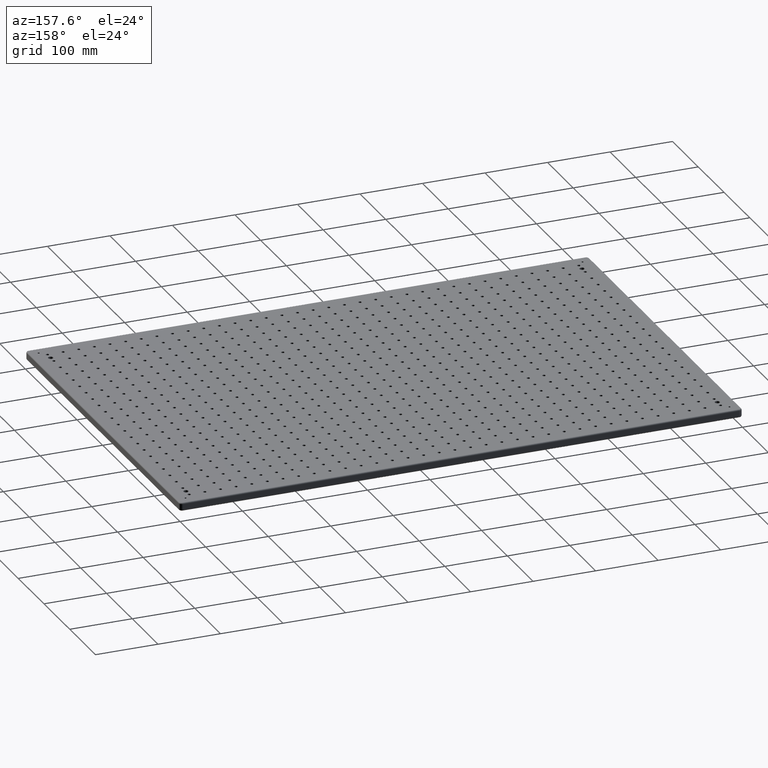
[diagram: clean part render]
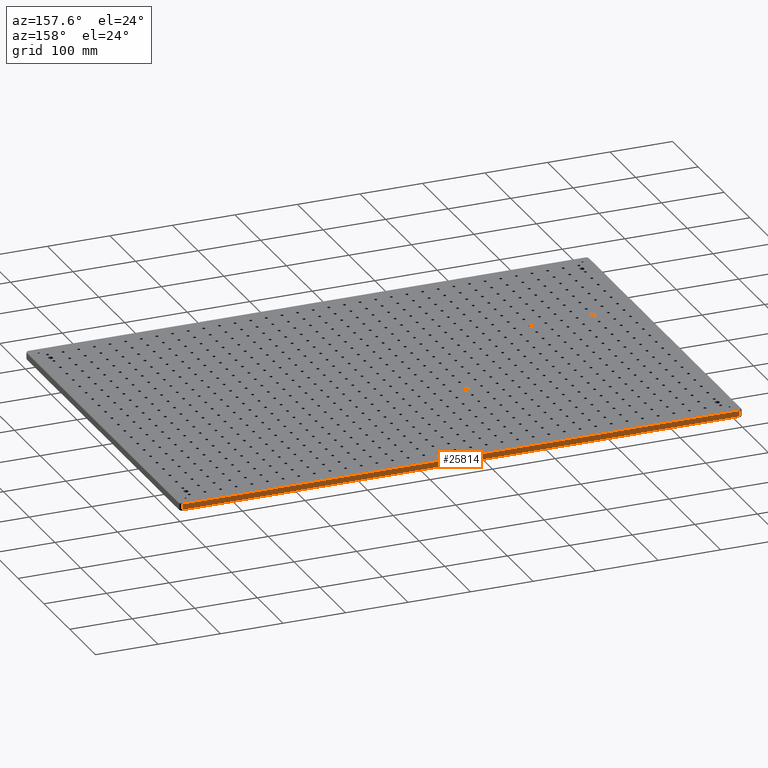
[diagram: same view with one face highlighted and labeled with its STEP entity id]
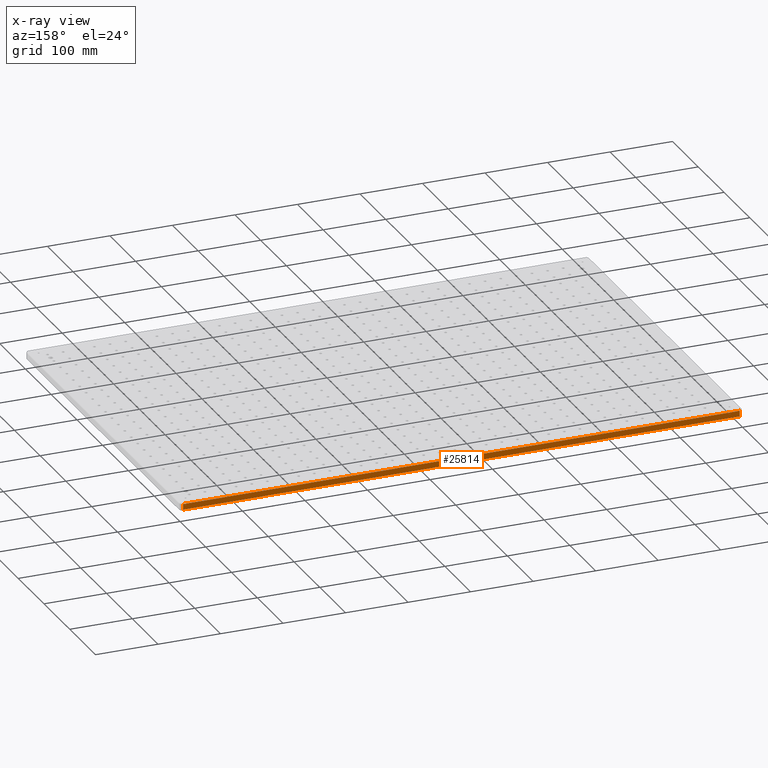
[diagram: x-ray of the same camera — body ghosted, the highlighted face saturated]
A machine part, auxiliary view. The second image highlights one B-rep face of the part: STEP entity #25814.
The next image is the same camera in x-ray: the body ghosted, the highlighted face saturated — about 0% of this face is hidden behind the body in this view.
In plain terms, the highlighted planar face has unit normal (0, 1, -0).
Its self-contained STEP definition (entity closure, byte-faithful):
#951 = ORIENTED_EDGE ( 'NONE', *, *, #27889, .T. ) ;
#2123 = LINE ( 'NONE', #11968, #57465 ) ;
#2520 = DIRECTION ( 'NONE',  ( -1.000000000000000000, 1.233581138472396200E-016, 0.0000000000000000000 ) ) ;
#2914 = AXIS2_PLACEMENT_3D ( 'NONE', #30190, #29966, #2520 ) ;
#7287 = EDGE_CURVE ( 'NONE', #58480, #27861, #40448, .T. ) ;
#8478 = LINE ( 'NONE', #26433, #46806 ) ;
#9503 = ORIENTED_EDGE ( 'NONE', *, *, #7287, .T. ) ;
#10424 = CARTESIAN_POINT ( 'NONE',  ( 4.999999999999999100, 600.0000000000000000, -11.00000000000000000 ) ) ;
#11968 = CARTESIAN_POINT ( 'NONE',  ( 0.0000000000000000000, 600.0000000000000000, -11.00000000000000000 ) ) ;
#12146 = DIRECTION ( 'NONE',  ( -0.0000000000000000000, -0.0000000000000000000, -1.000000000000000000 ) ) ;
#14941 = EDGE_CURVE ( 'NONE', #27861, #16997, #29011, .T. ) ;
#16184 = CARTESIAN_POINT ( 'NONE',  ( 894.9999999999998900, 599.9999999999998900, -2.000000000000000000 ) ) ;
#16997 = VERTEX_POINT ( 'NONE', #16184 ) ;
#17189 = VECTOR ( 'NONE', #58636, 1000.000000000000000 ) ;
#21075 = DIRECTION ( 'NONE',  ( -1.000000000000000000, 1.233581138472396200E-016, 0.0000000000000000000 ) ) ;
#23607 = CARTESIAN_POINT ( 'NONE',  ( 4.999999999999999100, 600.0000000000000000, -13.00000000000000000 ) ) ;
#25814 = ADVANCED_FACE ( 'NONE', ( #41028 ), #58239, .T. ) ;
#26433 = CARTESIAN_POINT ( 'NONE',  ( 894.9999999999998900, 599.9999999999998900, -13.00000000000000000 ) ) ;
#27861 = VERTEX_POINT ( 'NONE', #35777 ) ;
#27889 = EDGE_CURVE ( 'NONE', #16997, #30882, #8478, .T. ) ;
#29011 = LINE ( 'NONE', #53638, #17189 ) ;
#29966 = DIRECTION ( 'NONE',  ( 1.233581138472396200E-016, 1.000000000000000000, -0.0000000000000000000 ) ) ;
#30190 = CARTESIAN_POINT ( 'NONE',  ( 0.0000000000000000000, 600.0000000000000000, -13.00000000000000000 ) ) ;
#30882 = VERTEX_POINT ( 'NONE', #59299 ) ;
#35777 = CARTESIAN_POINT ( 'NONE',  ( 4.999999999999999100, 600.0000000000000000, -2.000000000000000000 ) ) ;
#36041 = ORIENTED_EDGE ( 'NONE', *, *, #14941, .T. ) ;
#39751 = VECTOR ( 'NONE', #46656, 1000.000000000000000 ) ;
#40448 = LINE ( 'NONE', #23607, #39751 ) ;
#41028 = FACE_OUTER_BOUND ( 'NONE', #47308, .T. ) ;
#46656 = DIRECTION ( 'NONE',  ( 0.0000000000000000000, 0.0000000000000000000, 1.000000000000000000 ) ) ;
#46806 = VECTOR ( 'NONE', #12146, 1000.000000000000000 ) ;
#47308 = EDGE_LOOP ( 'NONE', ( #951, #49340, #9503, #36041 ) ) ;
#49340 = ORIENTED_EDGE ( 'NONE', *, *, #59194, .T. ) ;
#53638 = CARTESIAN_POINT ( 'NONE',  ( 894.9999999999998900, 599.9999999999998900, -2.000000000000000000 ) ) ;
#57465 = VECTOR ( 'NONE', #21075, 1000.000000000000000 ) ;
#58239 = PLANE ( 'NONE',  #2914 ) ;
#58480 = VERTEX_POINT ( 'NONE', #10424 ) ;
#58636 = DIRECTION ( 'NONE',  ( 1.000000000000000000, -1.233581138472396200E-016, -0.0000000000000000000 ) ) ;
#59194 = EDGE_CURVE ( 'NONE', #30882, #58480, #2123, .T. ) ;
#59299 = CARTESIAN_POINT ( 'NONE',  ( 894.9999999999998900, 599.9999999999998900, -11.00000000000000000 ) ) ;